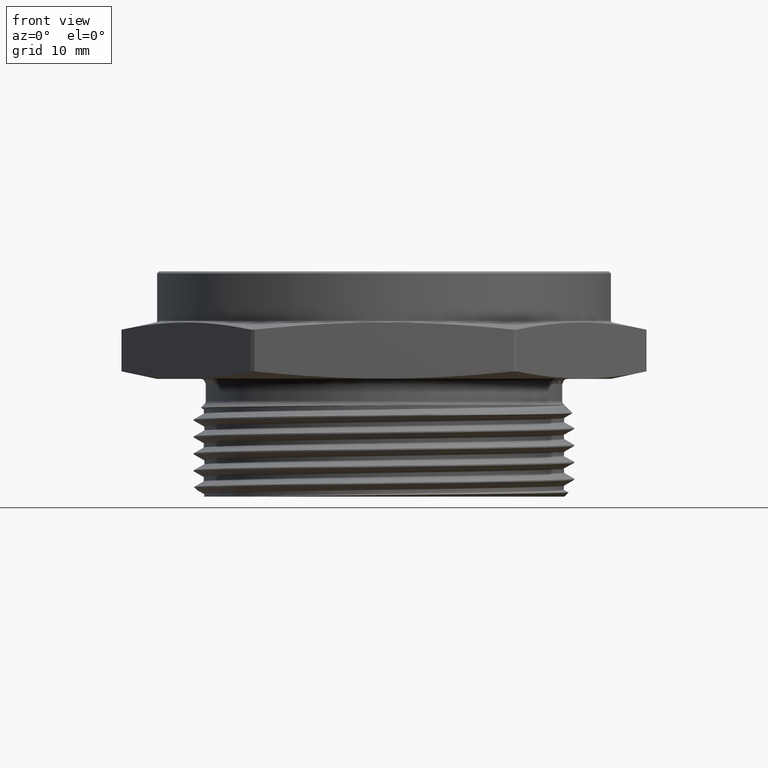
[diagram: clean part render]
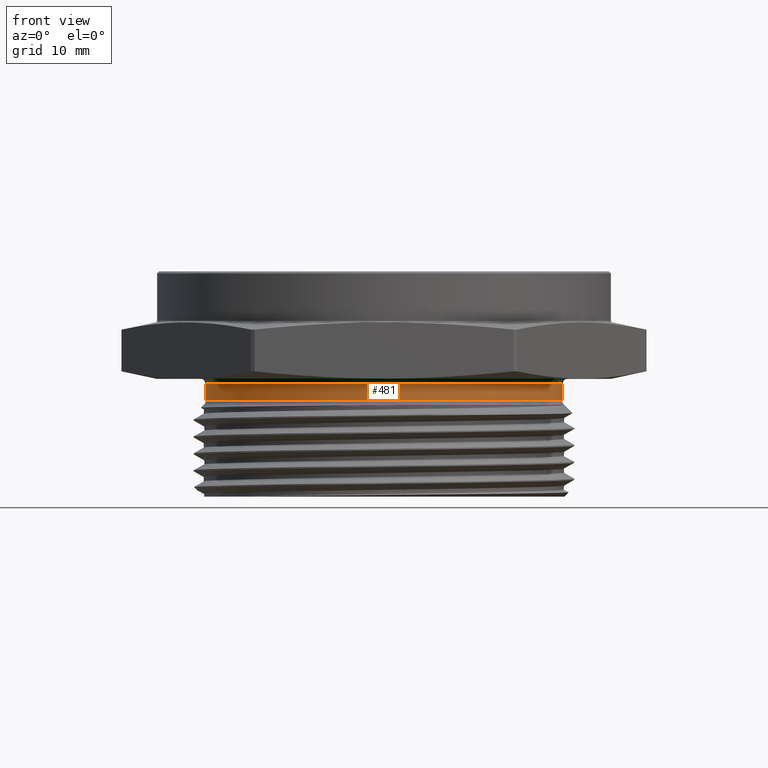
[diagram: same view with one face highlighted and labeled with its STEP entity id]
A machine part, front view. The second image highlights one B-rep face of the part: STEP entity #481.
In plain terms, the highlighted cylindrical surface (partial cylindrical patch) has radius 22.3012 mm, axis along (-0, -0, 1).
Its self-contained STEP definition (entity closure, byte-faithful):
#195 = ORIENTED_EDGE ( 'NONE', *, *, #250, .F. ) ;
#204 = FACE_OUTER_BOUND ( 'NONE', #2607, .T. ) ;
#210 = CYLINDRICAL_SURFACE ( 'NONE', #693, 0.8780000000000000000 ) ;
#250 = EDGE_CURVE ( 'NONE', #546, #542, #1737, .T. ) ;
#253 = EDGE_CURVE ( 'NONE', #570, #546, #1741, .T. ) ;
#255 = EDGE_CURVE ( 'NONE', #538, #542, #1745, .T. ) ;
#256 = EDGE_CURVE ( 'NONE', #570, #538, #1742, .T. ) ;
#481 = ADVANCED_FACE ( 'NONE', ( #204 ), #210, .T. ) ;
#538 = VERTEX_POINT ( 'NONE', #3421 ) ;
#542 = VERTEX_POINT ( 'NONE', #3413 ) ;
#546 = VERTEX_POINT ( 'NONE', #3427 ) ;
#570 = VERTEX_POINT ( 'NONE', #3451 ) ;
#642 = AXIS2_PLACEMENT_3D ( 'NONE', #2884, #2883, #2882 ) ;
#646 = AXIS2_PLACEMENT_3D ( 'NONE', #2869, #2867, #2866 ) ;
#693 = AXIS2_PLACEMENT_3D ( 'NONE', #3390, #3391, #3388 ) ;
#1737 = CIRCLE ( 'NONE', #642, 0.8780000000000000000 ) ;
#1741 = LINE ( 'NONE', #2877, #1744 ) ;
#1742 = CIRCLE ( 'NONE', #646, 0.8780000000000000000 ) ;
#1744 = VECTOR ( 'NONE', #2889, 39.37007874015748100 ) ;
#1745 = LINE ( 'NONE', #2885, #1747 ) ;
#1747 = VECTOR ( 'NONE', #2878, 39.37007874015748100 ) ;
#2607 = EDGE_LOOP ( 'NONE', ( #2642, #2644, #2643, #195 ) ) ;
#2642 = ORIENTED_EDGE ( 'NONE', *, *, #253, .F. ) ;
#2643 = ORIENTED_EDGE ( 'NONE', *, *, #255, .T. ) ;
#2644 = ORIENTED_EDGE ( 'NONE', *, *, #256, .T. ) ;
#2866 = DIRECTION ( 'NONE',  ( 1.000000000000000000, 0.0000000000000000000, 0.0000000000000000000 ) ) ;
#2867 = DIRECTION ( 'NONE',  ( -0.0000000000000000000, -0.0000000000000000000, 1.000000000000000000 ) ) ;
#2869 = CARTESIAN_POINT ( 'NONE',  ( 0.0000000000000000000, 0.0000000000000000000, -0.1073223304703362400 ) ) ;
#2877 = CARTESIAN_POINT ( 'NONE',  ( -0.8780000000000000000, 1.075239889651376100E-016, 0.0000000000000000000 ) ) ;
#2878 = DIRECTION ( 'NONE',  ( -0.0000000000000000000, -0.0000000000000000000, 1.000000000000000000 ) ) ;
#2882 = DIRECTION ( 'NONE',  ( 1.000000000000000000, 0.0000000000000000000, 0.0000000000000000000 ) ) ;
#2883 = DIRECTION ( 'NONE',  ( -0.0000000000000000000, -0.0000000000000000000, 1.000000000000000000 ) ) ;
#2884 = CARTESIAN_POINT ( 'NONE',  ( 0.0000000000000000000, 0.0000000000000000000, -0.02500000000000003600 ) ) ;
#2885 = CARTESIAN_POINT ( 'NONE',  ( 0.8780000000000000000, 0.0000000000000000000, 0.0000000000000000000 ) ) ;
#2889 = DIRECTION ( 'NONE',  ( -0.0000000000000000000, -0.0000000000000000000, 1.000000000000000000 ) ) ;
#3388 = DIRECTION ( 'NONE',  ( 1.000000000000000000, 0.0000000000000000000, 0.0000000000000000000 ) ) ;
#3390 = CARTESIAN_POINT ( 'NONE',  ( 0.0000000000000000000, 0.0000000000000000000, 0.0000000000000000000 ) ) ;
#3391 = DIRECTION ( 'NONE',  ( -0.0000000000000000000, -0.0000000000000000000, 1.000000000000000000 ) ) ;
#3413 = CARTESIAN_POINT ( 'NONE',  ( 0.8780000000000000000, 0.0000000000000000000, -0.02500000000000003600 ) ) ;
#3421 = CARTESIAN_POINT ( 'NONE',  ( 0.8780000000000000000, 0.0000000000000000000, -0.1073223304703362400 ) ) ;
#3427 = CARTESIAN_POINT ( 'NONE',  ( -0.8780000000000000000, 1.075239889651376100E-016, -0.02500000000000003600 ) ) ;
#3451 = CARTESIAN_POINT ( 'NONE',  ( -0.8780000000000000000, 1.079723523937774400E-016, -0.1073223304703362400 ) ) ;